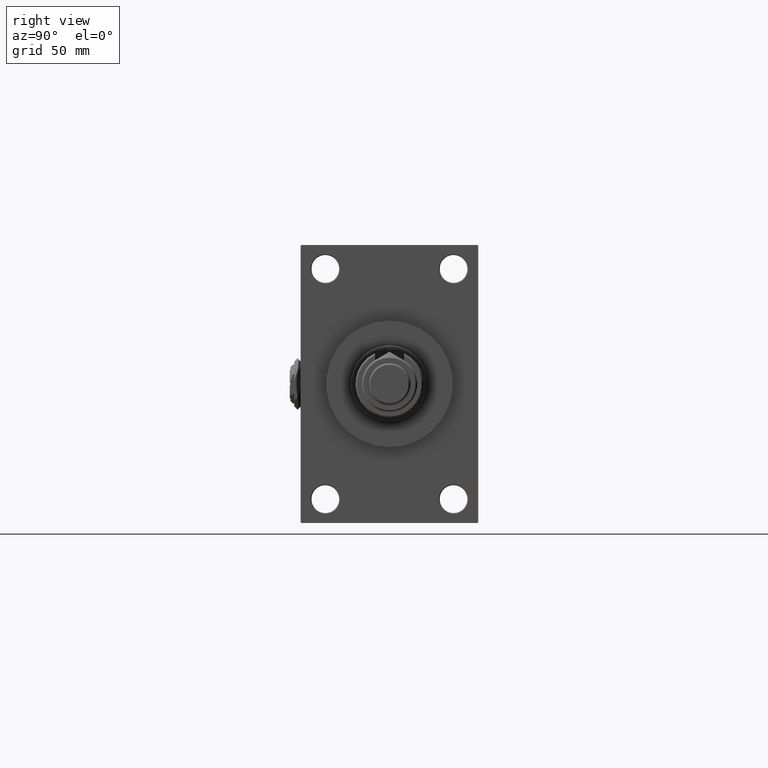
[diagram: clean part render]
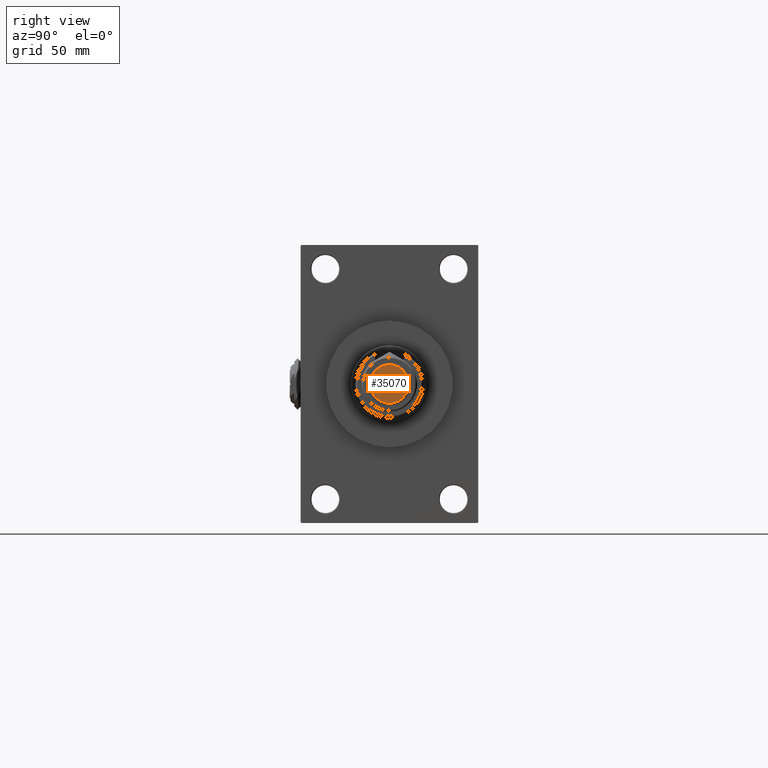
[diagram: same view with one face highlighted and labeled with its STEP entity id]
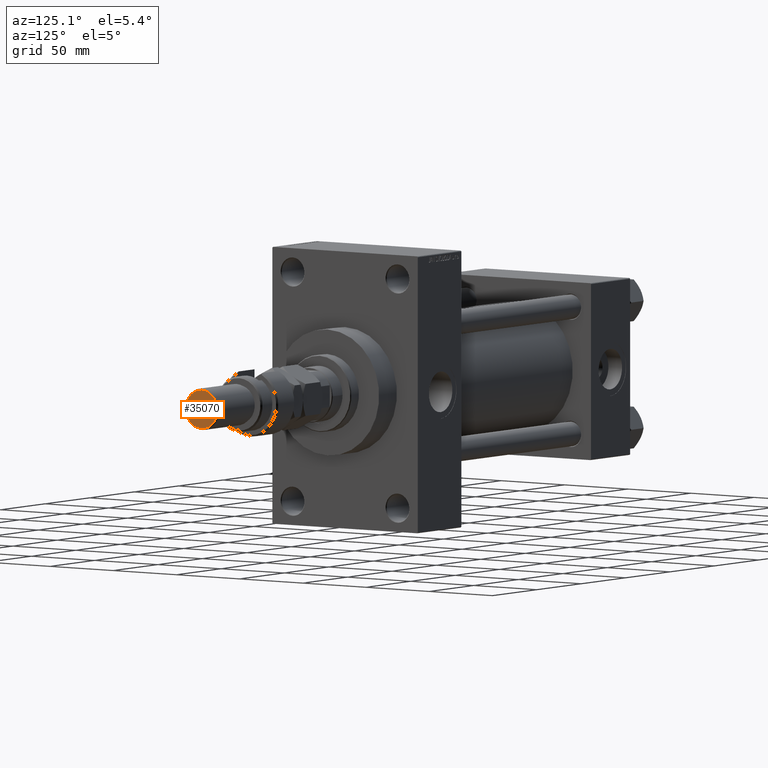
[diagram: same view with one face highlighted and labeled with its STEP entity id]
A machine part, right view. The second image highlights one B-rep face of the part: STEP entity #35070.
A second angle (auxiliary view) of the same face is appended — the face is thin or edge-on in the first view.
In plain terms, the highlighted planar face has unit normal (1, 0, 0).
Its self-contained STEP definition (entity closure, byte-faithful):
#2993 = DIRECTION ( 'NONE',  ( 0.000000000000000000, 0.000000000000000000, 1.000000000000000000 ) ) ;
#4336 = EDGE_LOOP ( 'NONE', ( #47040, #15736 ) ) ;
#4714 = DIRECTION ( 'NONE',  ( 1.000000000000000000, 0.000000000000000000, -0.000000000000000000 ) ) ;
#7235 = DIRECTION ( 'NONE',  ( 1.000000000000000000, 0.000000000000000000, 0.000000000000000000 ) ) ;
#10075 = CARTESIAN_POINT ( 'NONE',  ( -12.50000000000000888, 0.000000000000000000, 74.00000000000001421 ) ) ;
#12818 = AXIS2_PLACEMENT_3D ( 'NONE', #50555, #42627, #42370 ) ;
#15736 = ORIENTED_EDGE ( 'NONE', *, *, #23656, .T. ) ;
#19010 = AXIS2_PLACEMENT_3D ( 'NONE', #39217, #35783, #4714 ) ;
#23656 = EDGE_CURVE ( 'NONE', #28646, #38901, #42387, .T. ) ;
#27883 = AXIS2_PLACEMENT_3D ( 'NONE', #35829, #2993, #7235 ) ;
#28646 = VERTEX_POINT ( 'NONE', #48636 ) ;
#31272 = PLANE ( 'NONE',  #19010 ) ;
#31805 = FACE_OUTER_BOUND ( 'NONE', #4336, .T. ) ;
#35070 = ADVANCED_FACE ( 'NONE', ( #31805 ), #31272, .T. ) ;
#35783 = DIRECTION ( 'NONE',  ( 0.000000000000000000, 0.000000000000000000, 1.000000000000000000 ) ) ;
#35829 = CARTESIAN_POINT ( 'NONE',  ( 0.000000000000000000, 0.000000000000000000, 74.00000000000001421 ) ) ;
#38901 = VERTEX_POINT ( 'NONE', #10075 ) ;
#39217 = CARTESIAN_POINT ( 'NONE',  ( 0.000000000000000000, 0.000000000000000000, 74.00000000000001421 ) ) ;
#42370 = DIRECTION ( 'NONE',  ( 1.000000000000000000, 0.000000000000000000, 0.000000000000000000 ) ) ;
#42387 = CIRCLE ( 'NONE', #12818, 12.50000000000000888 ) ;
#42627 = DIRECTION ( 'NONE',  ( 0.000000000000000000, 0.000000000000000000, 1.000000000000000000 ) ) ;
#43939 = CIRCLE ( 'NONE', #27883, 12.50000000000000888 ) ;
#47040 = ORIENTED_EDGE ( 'NONE', *, *, #48258, .T. ) ;
#48258 = EDGE_CURVE ( 'NONE', #38901, #28646, #43939, .T. ) ;
#48636 = CARTESIAN_POINT ( 'NONE',  ( 12.50000000000000888, 1.592040838891559884E-15, 74.00000000000001421 ) ) ;
#50555 = CARTESIAN_POINT ( 'NONE',  ( 0.000000000000000000, 0.000000000000000000, 74.00000000000001421 ) ) ;